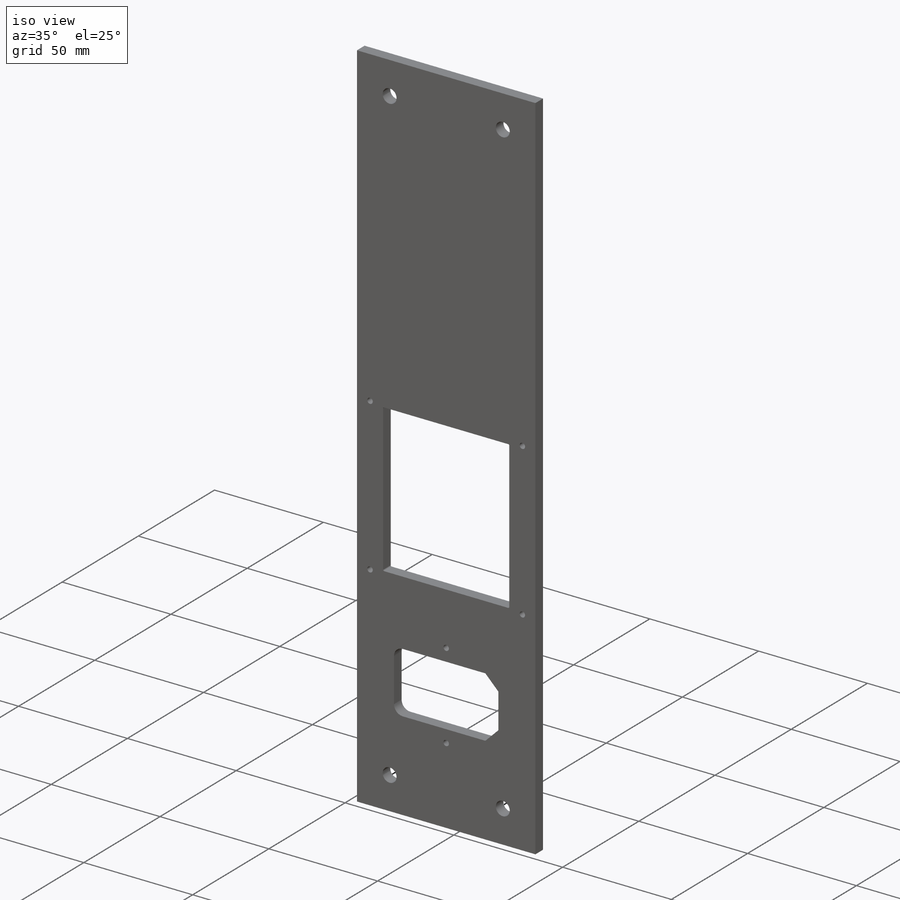
[diagram: iso view]
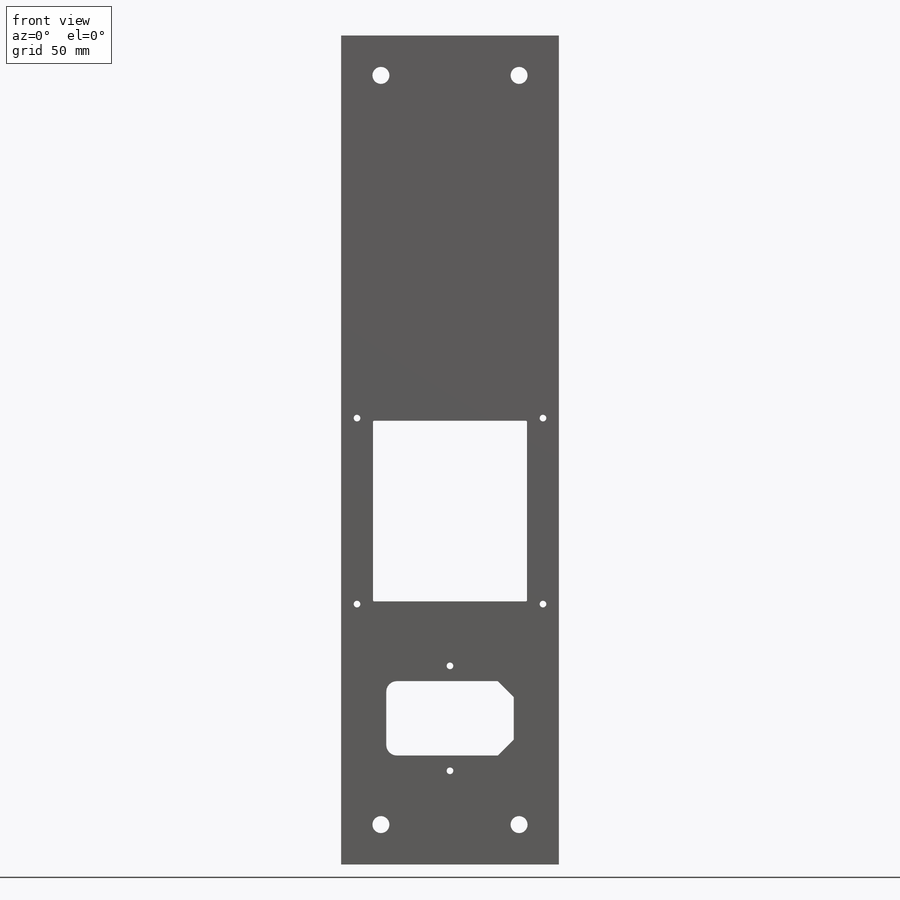
[diagram: front view]
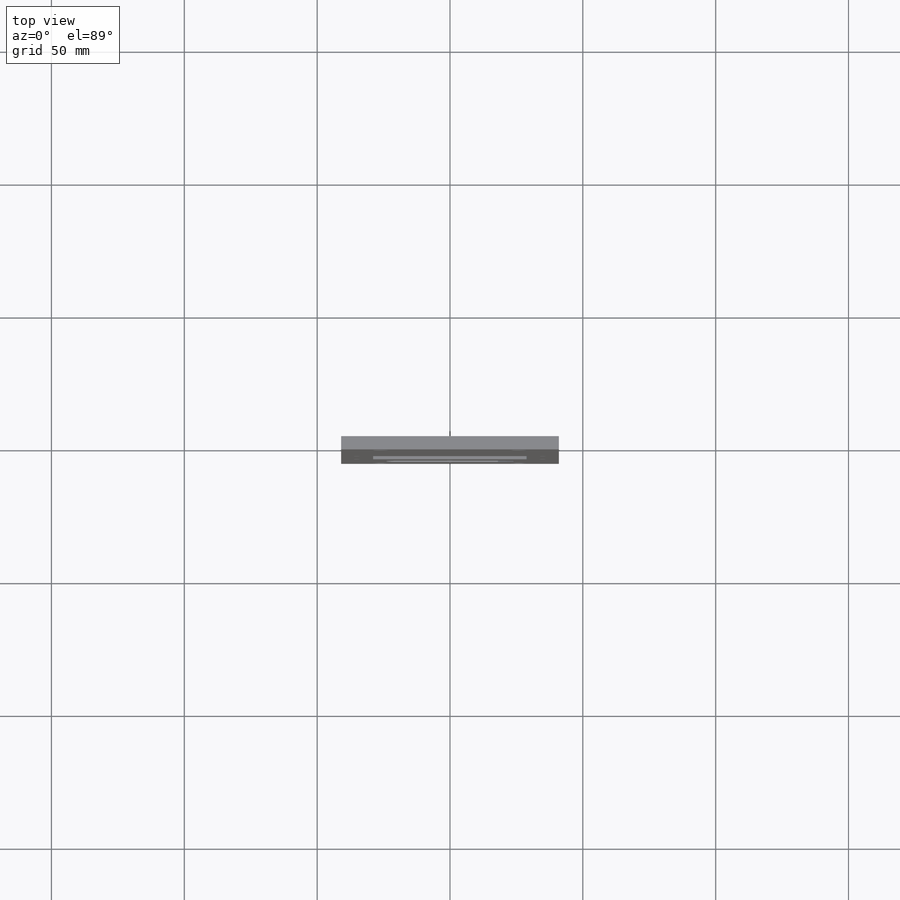
[diagram: top view]
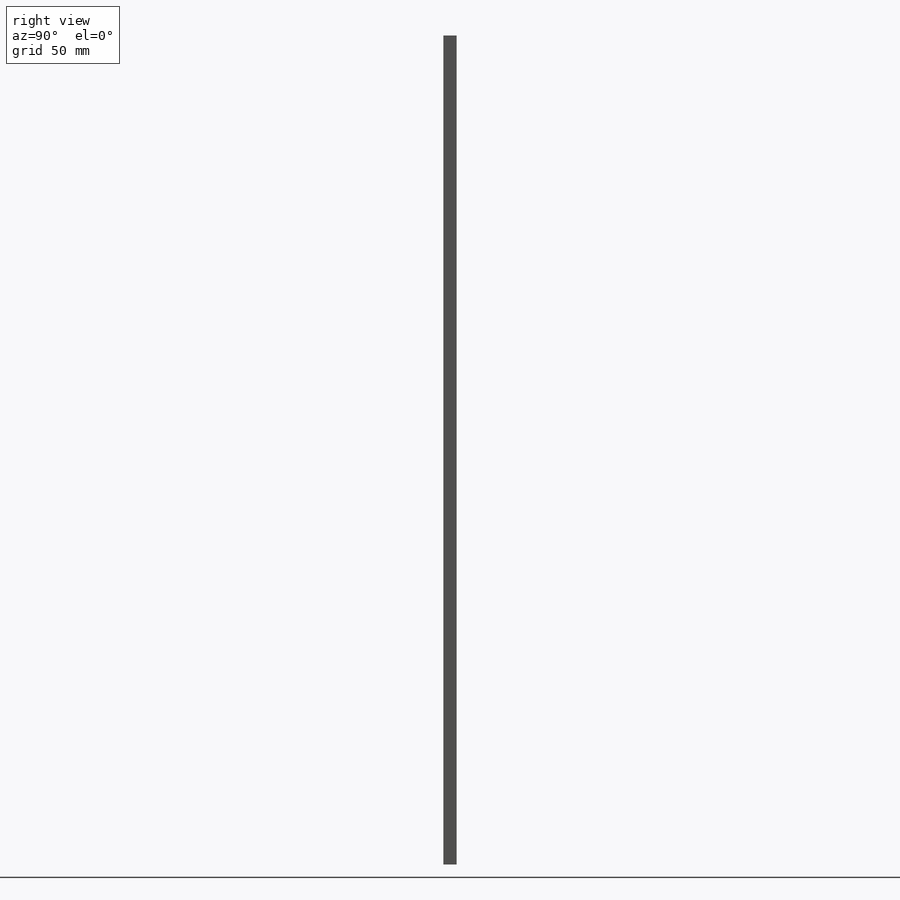
[diagram: right view]
SOLIDWORKS PART (.sldprt)
format: sldprt  version: not decoded by parser v0  size: 305,664 bytes
history: native  units: mm
features: sketch x7, thread x4, cut_extrude x2, fillet x2, hole x2, material x1, extrude x1, chamfer x1 (+12 scaffold rows collapsed)
feature tree (32):
  scaffold x12  (default folders/planes/origin — collapsed)
  material  "Material <not specified>"
  sketch  "Sketch1"  dims[D1=312.0mm D2=82.0mm]
  extrude  "Boss-Extrude1"  Depth=5mm
  sketch  "Sketch2"  dims[D6=2.5mm D7=2.5mm D1=28.0mm D2=48.0mm D3=55.0mm D4=19.75mm D5=19.75mm]
  cut_extrude  "Cut-Extrude1"  Depth=10mm
  chamfer  "Chamfer1"  Distance=6mm Angle=45deg
  fillet  "Fillet1"  Radius=4mm
  sketch  "Sketch3"  dims[D1=58.0mm D2=68.0mm D3=30.0mm]
  cut_extrude  "Cut-Extrude2"  [1 undecoded]
  hole  "M3x0.5 Tapped Hole1"  Diameter=2.5mm Depth=5mm
  sketch  "Sketch7"  dims[D1=35.0mm D2=35.0mm D3=35.0mm D4=35.0mm D5=35.0mm D6=35.0mm D7=35.0mm D8=35.0mm]
  sketch  "Sketch6"  dims[hole-wizard template sketch: 61 standard entries collapsed; hole parameters above]
  thread  "Hole Thread1"  Diameter=3mm  [1 undecoded]
  thread  "Hole Thread2"  Diameter=3mm  [1 undecoded]
  thread  "Hole Thread3"  Diameter=3mm  [1 undecoded]
  thread  "Hole Thread4"  Diameter=3mm  [1 undecoded]
  fillet  "Fillet2"  Radius=0.5mm
  hole  "M6 Clearance Hole1"  Diameter=6.4mm Depth=5mm
  sketch  "Sketch9"  dims[D1=15.0mm D2=15.0mm D3=15.0mm D4=15.0mm]
  sketch  "Sketch8"  dims[hole-wizard template sketch: 47 standard entries collapsed; hole parameters kept: c15.Hole Depth=5.0mm c15.D3=~14.816244mm c15.Drill Angle=118.0deg]
decode coverage: 18 of 19 modeling features carry decoded parameters
note: ~ marks probable driven/reference dimensions
note: 5 parameter values undecoded
note: suppression state not decoded; provenance and decode notes live in map.json
